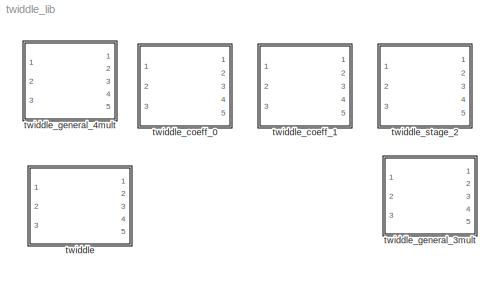
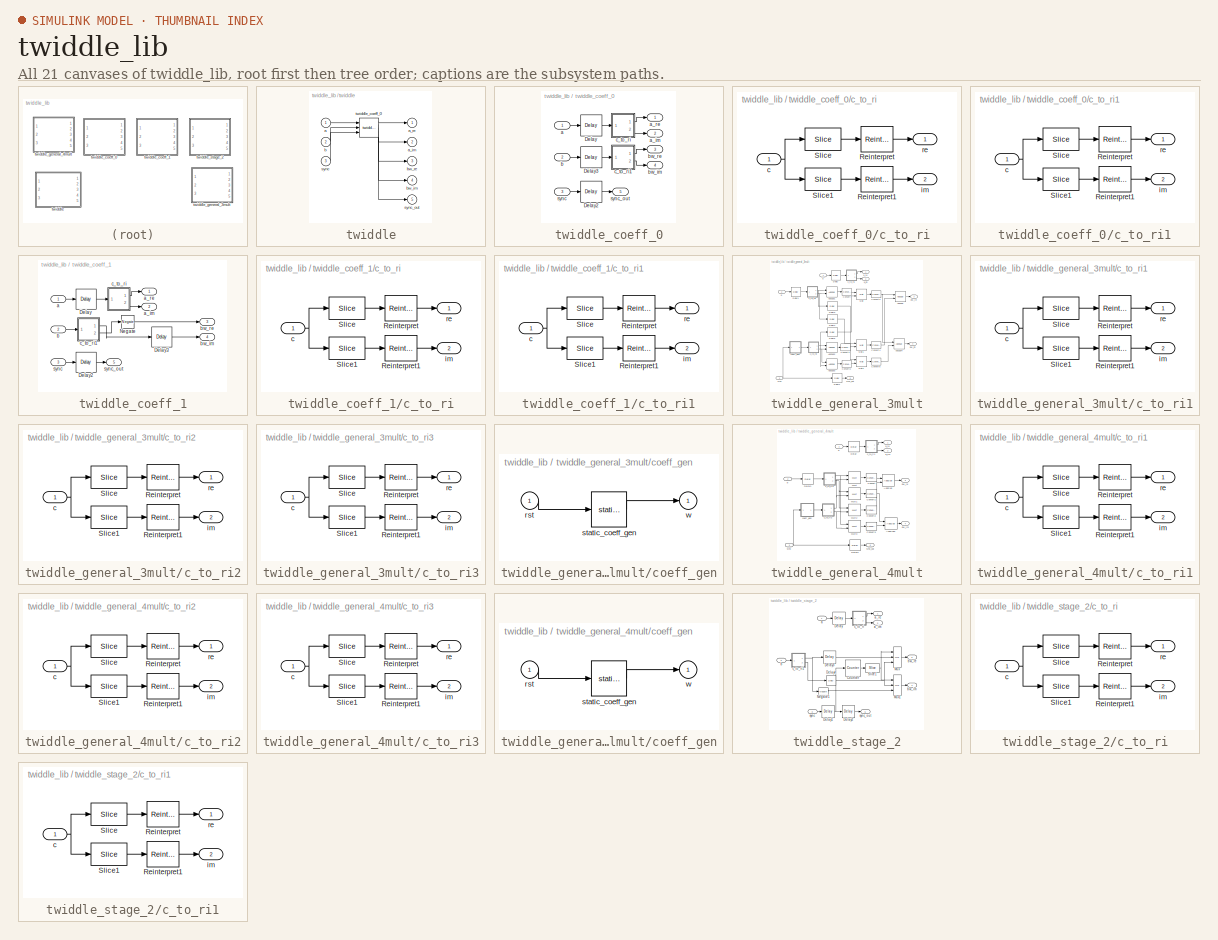
[diagram: thumbnail index - all 21 canvases of the model, root first then tree order]
MODEL twiddle_lib
KIND library
BLOCK [SubSystem] twiddle
  BlockChoice = twiddle_coeff_0
  MemberBlocks = twiddle_coeff_0,twiddle_coeff_1,twiddle_general_3mult,twiddle_general_4mult,twiddle_stage_2
  MinAlgLoopOccurrences = off
  Ports = [3, 5]
  RTWSystemCode = Auto
  TemplateBlock = self
  TreatAsAtomicUnit = off
BLOCK [Inport] twiddle/a
  IconDisplay = Port number
  LatchInput = off
  Port = 1
BLOCK [Outport] twiddle/a_im
  BusOutputAsStruct = off
  IconDisplay = Port number
  Port = 2
BLOCK [Outport] twiddle/a_re
  BusOutputAsStruct = off
  IconDisplay = Port number
BLOCK [Inport] twiddle/b
  IconDisplay = Port number
  LatchInput = off
  Port = 2
BLOCK [Outport] twiddle/bw_im
  BusOutputAsStruct = off
  IconDisplay = Port number
  Port = 4
BLOCK [Outport] twiddle/bw_re
  BusOutputAsStruct = off
  IconDisplay = Port number
  Port = 3
BLOCK [Inport] twiddle/sync
  IconDisplay = Port number
  LatchInput = off
  Port = 3
BLOCK [Outport] twiddle/sync_out
  BusOutputAsStruct = off
  IconDisplay = Port number
  Port = 5
BLOCK [Reference] twiddle/twiddle_coeff_0  REF=twiddle_lib/twiddle_coeff_0  (lib defined in mdl_941c3dec9a0a)
  BitWidth = 18
  Ports = [3, 5]
  ShowPortLabels = on
  SourceBlock = twiddle_lib/twiddle_coeff_0
  add_latency = 3
  bram_latency = 4
  mult_latency = 4
BLOCK [SubSystem] twiddle_coeff_0
  MaskCallbackString = |||
  MaskEnableString = on,on,on,on
  MaskIconFrame = on
  MaskIconOpaque = on
  MaskIconRotate = none
  MaskIconUnits = autoscale
  MaskInitialization = cursys = gcb;\ndisp(cursys);
  MaskPromptString = Bit Width|Add Latency|Mult Latency|BRAM Latency
  MaskSelfModifiable = on
  MaskStyleString = edit,edit,edit,edit
  MaskTabNameString = ,,,
  MaskToolTipString = on,on,on,on
  MaskTunableValueString = on,on,on,on
  MaskValueString = 18|3|4|4
  MaskVarAliasString = ,,,
  MaskVariables = BitWidth=@1;add_latency=@2;mult_latency=@3;bram_latency=@4;
  MaskVisibilityString = on,on,on,on
  MinAlgLoopOccurrences = off
  Ports = [3, 5]
  RTWSystemCode = Auto
  TreatAsAtomicUnit = off
BLOCK [Reference] twiddle_coeff_0/Delay  REF=xbsIndex_r3/Delay
  Ports = [1, 1]
  SourceBlock = xbsIndex_r3/Delay
  SourceType = Xilinx Delay Block
  accept_only_valid = off
  dbl_ovrd = off
  en = off
  explicit_period = off
  init_zero = on
  latency = mult_latency + add_latency + bram_latency
  period = 1
  reg_retiming = off
  show_param = off
  xl_area = [0, 0, 0, 0, 0, 0, 0]
  xl_use_area = off
BLOCK [Reference] twiddle_coeff_0/Delay2  REF=xbsIndex_r3/Delay
  Ports = [1, 1]
  SourceBlock = xbsIndex_r3/Delay
  SourceType = Xilinx Delay Block
  accept_only_valid = off
  dbl_ovrd = off
  en = off
  explicit_period = off
  init_zero = on
  latency = mult_latency + add_latency + bram_latency
  period = 1
  reg_retiming = off
  show_param = off
  xl_area = [0, 0, 0, 0, 0, 0, 0]
  xl_use_area = off
BLOCK [Reference] twiddle_coeff_0/Delay3  REF=xbsIndex_r3/Delay
  Ports = [1, 1]
  SourceBlock = xbsIndex_r3/Delay
  SourceType = Xilinx Delay Block
  accept_only_valid = off
  dbl_ovrd = off
  en = off
  explicit_period = off
  init_zero = on
  latency = mult_latency + add_latency + bram_latency
  period = 1
  reg_retiming = off
  show_param = off
  xl_area = [0, 0, 0, 0, 0, 0, 0]
  xl_use_area = off
BLOCK [Inport] twiddle_coeff_0/a
  IconDisplay = Port number
  LatchInput = off
  Port = 1
BLOCK [Outport] twiddle_coeff_0/a_im
  BusOutputAsStruct = off
  IconDisplay = Port number
  Port = 2
BLOCK [Outport] twiddle_coeff_0/a_re
  BusOutputAsStruct = off
  IconDisplay = Port number
BLOCK [Inport] twiddle_coeff_0/b
  IconDisplay = Port number
  LatchInput = off
  Port = 2
BLOCK [Outport] twiddle_coeff_0/bw_im
  BusOutputAsStruct = off
  IconDisplay = Port number
  Port = 4
BLOCK [Outport] twiddle_coeff_0/bw_re
  BusOutputAsStruct = off
  IconDisplay = Port number
  Port = 3
BLOCK [SubSystem] twiddle_coeff_0/c_to_ri
  MinAlgLoopOccurrences = off
  Ports = [1, 2]
  RTWSystemCode = Auto
  TreatAsAtomicUnit = off
BLOCK [Reference] twiddle_coeff_0/c_to_ri/Reinterpret  REF=xbsIndex_r3/Reinterpret
  Ports = [1, 1]
  SourceBlock = xbsIndex_r3/Reinterpret
  SourceType = Xilinx Type Reinterpreting Block
  arith_type = Signed  (2's comp)
  bin_pt = BitWidth - 1
  force_arith_type = on
  force_bin_pt = on
  force_valid = on
BLOCK [Reference] twiddle_coeff_0/c_to_ri/Reinterpret1  REF=xbsIndex_r3/Reinterpret
  Ports = [1, 1]
  SourceBlock = xbsIndex_r3/Reinterpret
  SourceType = Xilinx Type Reinterpreting Block
  arith_type = Signed  (2's comp)
  bin_pt = BitWidth - 1
  force_arith_type = on
  force_bin_pt = on
  force_valid = on
BLOCK [Reference] twiddle_coeff_0/c_to_ri/Slice  REF=xbsIndex_r3/Slice
  Ports = [1, 1]
  SourceBlock = xbsIndex_r3/Slice
  SourceType = Xilinx Slice Block
  base0 = LSB of Input
  base1 = MSB of Input
  bit0 = 0
  bit1 = 0
  boolean_output = off
  dbl_ovrd = off
  explicit_period = off
  mode = Upper Bit Location + Width
  nbits = BitWidth
  period = 1
BLOCK [Reference] twiddle_coeff_0/c_to_ri/Slice1  REF=xbsIndex_r3/Slice
  Ports = [1, 1]
  SourceBlock = xbsIndex_r3/Slice
  SourceType = Xilinx Slice Block
  base0 = LSB of Input
  base1 = MSB of Input
  bit0 = 0
  bit1 = 0
  boolean_output = off
  dbl_ovrd = off
  explicit_period = off
  mode = Lower Bit Location + Width
  nbits = BitWidth
  period = 1
BLOCK [Inport] twiddle_coeff_0/c_to_ri/c
  IconDisplay = Port number
  LatchInput = off
  Port = 1
BLOCK [Outport] twiddle_coeff_0/c_to_ri/im
  BusOutputAsStruct = off
  IconDisplay = Port number
  Port = 2
BLOCK [Outport] twiddle_coeff_0/c_to_ri/re
  BusOutputAsStruct = off
  IconDisplay = Port number
BLOCK [SubSystem] twiddle_coeff_0/c_to_ri1
  MinAlgLoopOccurrences = off
  Ports = [1, 2]
  RTWSystemCode = Auto
  TreatAsAtomicUnit = off
BLOCK [Reference] twiddle_coeff_0/c_to_ri1/Reinterpret  REF=xbsIndex_r3/Reinterpret
  Ports = [1, 1]
  SourceBlock = xbsIndex_r3/Reinterpret
  SourceType = Xilinx Type Reinterpreting Block
  arith_type = Signed  (2's comp)
  bin_pt = BitWidth - 1
  force_arith_type = on
  force_bin_pt = on
  force_valid = on
BLOCK [Reference] twiddle_coeff_0/c_to_ri1/Reinterpret1  REF=xbsIndex_r3/Reinterpret
  Ports = [1, 1]
  SourceBlock = xbsIndex_r3/Reinterpret
  SourceType = Xilinx Type Reinterpreting Block
  arith_type = Signed  (2's comp)
  bin_pt = BitWidth - 1
  force_arith_type = on
  force_bin_pt = on
  force_valid = on
BLOCK [Reference] twiddle_coeff_0/c_to_ri1/Slice  REF=xbsIndex_r3/Slice
  Ports = [1, 1]
  SourceBlock = xbsIndex_r3/Slice
  SourceType = Xilinx Slice Block
  base0 = LSB of Input
  base1 = MSB of Input
  bit0 = 0
  bit1 = 0
  boolean_output = off
  dbl_ovrd = off
  explicit_period = off
  mode = Upper Bit Location + Width
  nbits = BitWidth
  period = 1
BLOCK [Reference] twiddle_coeff_0/c_to_ri1/Slice1  REF=xbsIndex_r3/Slice
  Ports = [1, 1]
  SourceBlock = xbsIndex_r3/Slice
  SourceType = Xilinx Slice Block
  base0 = LSB of Input
  base1 = MSB of Input
  bit0 = 0
  bit1 = 0
  boolean_output = off
  dbl_ovrd = off
  explicit_period = off
  mode = Lower Bit Location + Width
  nbits = BitWidth
  period = 1
BLOCK [Inport] twiddle_coeff_0/c_to_ri1/c
  IconDisplay = Port number
  LatchInput = off
  Port = 1
BLOCK [Outport] twiddle_coeff_0/c_to_ri1/im
  BusOutputAsStruct = off
  IconDisplay = Port number
  Port = 2
BLOCK [Outport] twiddle_coeff_0/c_to_ri1/re
  BusOutputAsStruct = off
  IconDisplay = Port number
BLOCK [Inport] twiddle_coeff_0/sync
  IconDisplay = Port number
  LatchInput = off
  Port = 3
BLOCK [Outport] twiddle_coeff_0/sync_out
  BusOutputAsStruct = off
  IconDisplay = Port number
  Port = 5
BLOCK [SubSystem] twiddle_coeff_1
  MaskCallbackString = |||
  MaskEnableString = on,on,on,on
  MaskIconFrame = on
  MaskIconOpaque = on
  MaskIconRotate = none
  MaskIconUnits = autoscale
  MaskInitialization = cursys = gcb;\ndisp(cursys);
  MaskPromptString = Bit Width|Add Latency|Mult Latency|BRAM Latency
  MaskSelfModifiable = on
  MaskStyleString = edit,edit,edit,edit
  MaskTabNameString = ,,,
  MaskToolTipString = on,on,on,on
  MaskTunableValueString = on,on,on,on
  MaskValueString = 18|3|4|4
  MaskVarAliasString = ,,,
  MaskVariables = BitWidth=@1;add_latency=@2;mult_latency=@3;bram_latency=@4;
  MaskVisibilityString = on,on,on,on
  MinAlgLoopOccurrences = off
  Ports = [3, 5]
  RTWSystemCode = Auto
  TreatAsAtomicUnit = off
BLOCK [Reference] twiddle_coeff_1/Delay  REF=xbsIndex_r3/Delay
  Ports = [1, 1]
  SourceBlock = xbsIndex_r3/Delay
  SourceType = Xilinx Delay Block
  accept_only_valid = off
  dbl_ovrd = off
  en = off
  explicit_period = off
  init_zero = on
  latency = mult_latency + add_latency + bram_latency
  period = 1
  reg_retiming = off
  show_param = off
  xl_area = [0, 0, 0, 0, 0, 0, 0]
  xl_use_area = off
BLOCK [Reference] twiddle_coeff_1/Delay2  REF=xbsIndex_r3/Delay
  Ports = [1, 1]
  SourceBlock = xbsIndex_r3/Delay
  SourceType = Xilinx Delay Block
  accept_only_valid = off
  dbl_ovrd = off
  en = off
  explicit_period = off
  init_zero = on
  latency = mult_latency + add_latency + bram_latency
  period = 1
  reg_retiming = off
  show_param = off
  xl_area = [0, 0, 0, 0, 0, 0, 0]
  xl_use_area = off
BLOCK [Reference] twiddle_coeff_1/Delay3  REF=xbsIndex_r3/Delay
  Ports = [1, 1]
  SourceBlock = xbsIndex_r3/Delay
  SourceType = Xilinx Delay Block
  accept_only_valid = off
  dbl_ovrd = off
  en = off
  explicit_period = off
  init_zero = on
  latency = mult_latency + add_latency + bram_latency
  period = 1
  reg_retiming = off
  show_param = off
  xl_area = [0, 0, 0, 0, 0, 0, 0]
  xl_use_area = off
BLOCK [Reference] twiddle_coeff_1/Negate  REF=xbsIndex_r3/Negate
  Ports = [1, 1]
  SourceBlock = xbsIndex_r3/Negate
  SourceType = Xilinx Negate Block
  arith_type = Signed  (2's comp)
  bin_pt = BitWidth-1
  dbl_ovrd = off
  en = off
  explicit_period = off
  gen_core = off
  latency = mult_latency + add_latency + bram_latency
  n_bits = BitWidth
  overflow = Wrap
  period = 1
  precision = User Defined
  quantization = Truncate
  show_param = off
  use_core = on
  use_rpm = on
  xl_area = [0, 0, 0, 0, 0, 0, 0]
  xl_use_area = off
BLOCK [Inport] twiddle_coeff_1/a
  IconDisplay = Port number
  LatchInput = off
  Port = 1
BLOCK [Outport] twiddle_coeff_1/a_im
  BusOutputAsStruct = off
  IconDisplay = Port number
  Port = 2
BLOCK [Outport] twiddle_coeff_1/a_re
  BusOutputAsStruct = off
  IconDisplay = Port number
BLOCK [Inport] twiddle_coeff_1/b
  IconDisplay = Port number
  LatchInput = off
  Port = 2
BLOCK [Outport] twiddle_coeff_1/bw_im
  BusOutputAsStruct = off
  IconDisplay = Port number
  Port = 4
BLOCK [Outport] twiddle_coeff_1/bw_re
  BusOutputAsStruct = off
  IconDisplay = Port number
  Port = 3
BLOCK [SubSystem] twiddle_coeff_1/c_to_ri
  MinAlgLoopOccurrences = off
  Ports = [1, 2]
  RTWSystemCode = Auto
  TreatAsAtomicUnit = off
BLOCK [Reference] twiddle_coeff_1/c_to_ri/Reinterpret  REF=xbsIndex_r3/Reinterpret
  Ports = [1, 1]
  SourceBlock = xbsIndex_r3/Reinterpret
  SourceType = Xilinx Type Reinterpreting Block
  arith_type = Signed  (2's comp)
  bin_pt = BitWidth - 1
  force_arith_type = on
  force_bin_pt = on
  force_valid = on
BLOCK [Reference] twiddle_coeff_1/c_to_ri/Reinterpret1  REF=xbsIndex_r3/Reinterpret
  Ports = [1, 1]
  SourceBlock = xbsIndex_r3/Reinterpret
  SourceType = Xilinx Type Reinterpreting Block
  arith_type = Signed  (2's comp)
  bin_pt = BitWidth - 1
  force_arith_type = on
  force_bin_pt = on
  force_valid = on
BLOCK [Reference] twiddle_coeff_1/c_to_ri/Slice  REF=xbsIndex_r3/Slice
  Ports = [1, 1]
  SourceBlock = xbsIndex_r3/Slice
  SourceType = Xilinx Slice Block
  base0 = LSB of Input
  base1 = MSB of Input
  bit0 = 0
  bit1 = 0
  boolean_output = off
  dbl_ovrd = off
  explicit_period = off
  mode = Upper Bit Location + Width
  nbits = BitWidth
  period = 1
BLOCK [Reference] twiddle_coeff_1/c_to_ri/Slice1  REF=xbsIndex_r3/Slice
  Ports = [1, 1]
  SourceBlock = xbsIndex_r3/Slice
  SourceType = Xilinx Slice Block
  base0 = LSB of Input
  base1 = MSB of Input
  bit0 = 0
  bit1 = 0
  boolean_output = off
  dbl_ovrd = off
  explicit_period = off
  mode = Lower Bit Location + Width
  nbits = BitWidth
  period = 1
BLOCK [Inport] twiddle_coeff_1/c_to_ri/c
  IconDisplay = Port number
  LatchInput = off
  Port = 1
BLOCK [Outport] twiddle_coeff_1/c_to_ri/im
  BusOutputAsStruct = off
  IconDisplay = Port number
  Port = 2
BLOCK [Outport] twiddle_coeff_1/c_to_ri/re
  BusOutputAsStruct = off
  IconDisplay = Port number
BLOCK [SubSystem] twiddle_coeff_1/c_to_ri1
  MinAlgLoopOccurrences = off
  Ports = [1, 2]
  RTWSystemCode = Auto
  TreatAsAtomicUnit = off
BLOCK [Reference] twiddle_coeff_1/c_to_ri1/Reinterpret  REF=xbsIndex_r3/Reinterpret
  Ports = [1, 1]
  SourceBlock = xbsIndex_r3/Reinterpret
  SourceType = Xilinx Type Reinterpreting Block
  arith_type = Signed  (2's comp)
  bin_pt = BitWidth - 1
  force_arith_type = on
  force_bin_pt = on
  force_valid = on
BLOCK [Reference] twiddle_coeff_1/c_to_ri1/Reinterpret1  REF=xbsIndex_r3/Reinterpret
  Ports = [1, 1]
  SourceBlock = xbsIndex_r3/Reinterpret
  SourceType = Xilinx Type Reinterpreting Block
  arith_type = Signed  (2's comp)
  bin_pt = BitWidth - 1
  force_arith_type = on
  force_bin_pt = on
  force_valid = on
BLOCK [Reference] twiddle_coeff_1/c_to_ri1/Slice  REF=xbsIndex_r3/Slice
  Ports = [1, 1]
  SourceBlock = xbsIndex_r3/Slice
  SourceType = Xilinx Slice Block
  base0 = LSB of Input
  base1 = MSB of Input
  bit0 = 0
  bit1 = 0
  boolean_output = off
  dbl_ovrd = off
  explicit_period = off
  mode = Upper Bit Location + Width
  nbits = BitWidth
  period = 1
BLOCK [Reference] twiddle_coeff_1/c_to_ri1/Slice1  REF=xbsIndex_r3/Slice
  Ports = [1, 1]
  SourceBlock = xbsIndex_r3/Slice
  SourceType = Xilinx Slice Block
  base0 = LSB of Input
  base1 = MSB of Input
  bit0 = 0
  bit1 = 0
  boolean_output = off
  dbl_ovrd = off
  explicit_period = off
  mode = Lower Bit Location + Width
  nbits = BitWidth
  period = 1
BLOCK [Inport] twiddle_coeff_1/c_to_ri1/c
  IconDisplay = Port number
  LatchInput = off
  Port = 1
BLOCK [Outport] twiddle_coeff_1/c_to_ri1/im
  BusOutputAsStruct = off
  IconDisplay = Port number
  Port = 2
BLOCK [Outport] twiddle_coeff_1/c_to_ri1/re
  BusOutputAsStruct = off
  IconDisplay = Port number
BLOCK [Inport] twiddle_coeff_1/sync
  IconDisplay = Port number
  LatchInput = off
  Port = 3
BLOCK [Outport] twiddle_coeff_1/sync_out
  BusOutputAsStruct = off
  IconDisplay = Port number
  Port = 5
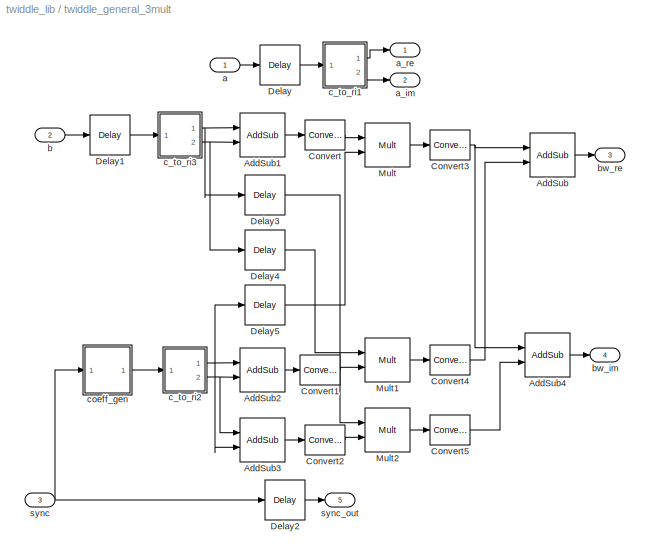
BLOCK [SubSystem] twiddle_general_3mult
  MaskCallbackString = |||||
  MaskEnableString = on,on,on,on,on,on
  MaskIconFrame = on
  MaskIconOpaque = on
  MaskIconRotate = none
  MaskIconUnits = autoscale
  MaskInitialization = cursys = gcb;\ndisp(cursys);
  MaskPromptString = Coefficients:|Coefficient Step Period (2^?)|Bit Width|Add Latency|Mult Latency|BRAM Latency
  MaskSelfModifiable = on
  MaskStyleString = edit,edit,edit,edit,edit,edit
  MaskTabNameString = ,,,,,
  MaskToolTipString = on,on,on,on,on,on
  MaskTunableValueString = on,on,on,on,on,on
  MaskValueString = [0]|0|18|3|4|4
  MaskVarAliasString = ,,,,,
  MaskVariables = Coeffs=@1;StepPeriod=@2;BitWidth=@3;add_latency=@4;mult_latency=@5;bram_latency=@6;
  MaskVisibilityString = on,on,on,on,on,on
  MinAlgLoopOccurrences = off
  Ports = [3, 5]
  RTWSystemCode = Auto
  TreatAsAtomicUnit = off
BLOCK [Reference] twiddle_general_3mult/AddSub  REF=xbsIndex_r3/AddSub
  Ports = [2, 1]
  SourceBlock = xbsIndex_r3/AddSub
  SourceType = Xilinx Adder/Subtractor
  arith_type = Signed  (2's comp)
  bin_pt = BitWidth - 1
  dbl_ovrd = off
  en = off
  explicit_period = off
  gen_core = on
  latency = add_latency
  mode = Subtraction
  n_bits = BitWidth
  overflow = Wrap
  period = 1
  pipeline = on
  precision = Full
  quantization = Round  (unbiased: +/- Inf)
  show_param = on
  use_carryin = off
  use_carryout = off
  use_core = on
  use_rpm = on
  xl_area = [0, 0, 0, 0, 0, 0, 0]
  xl_use_area = off
BLOCK [Reference] twiddle_general_3mult/AddSub1  REF=xbsIndex_r3/AddSub
  Ports = [2, 1]
  SourceBlock = xbsIndex_r3/AddSub
  SourceType = Xilinx Adder/Subtractor
  arith_type = Signed  (2's comp)
  bin_pt = BitWidth - 1
  dbl_ovrd = off
  en = off
  explicit_period = off
  gen_core = on
  latency = add_latency
  mode = Addition
  n_bits = BitWidth
  overflow = Wrap
  period = 1
  pipeline = on
  precision = Full
  quantization = Round  (unbiased: +/- Inf)
  show_param = on
  use_carryin = off
  use_carryout = off
  use_core = on
  use_rpm = on
  xl_area = [0, 0, 0, 0, 0, 0, 0]
  xl_use_area = off
BLOCK [Reference] twiddle_general_3mult/AddSub2  REF=xbsIndex_r3/AddSub
  Ports = [2, 1]
  SourceBlock = xbsIndex_r3/AddSub
  SourceType = Xilinx Adder/Subtractor
  arith_type = Signed  (2's comp)
  bin_pt = BitWidth - 1
  dbl_ovrd = off
  en = off
  explicit_period = off
  gen_core = on
  latency = add_latency
  mode = Addition
  n_bits = BitWidth
  overflow = Wrap
  period = 1
  pipeline = on
  precision = Full
  quantization = Round  (unbiased: +/- Inf)
  show_param = on
  use_carryin = off
  use_carryout = off
  use_core = on
  use_rpm = on
  xl_area = [0, 0, 0, 0, 0, 0, 0]
  xl_use_area = off
BLOCK [Reference] twiddle_general_3mult/AddSub3  REF=xbsIndex_r3/AddSub
  Ports = [2, 1]
  SourceBlock = xbsIndex_r3/AddSub
  SourceType = Xilinx Adder/Subtractor
  arith_type = Signed  (2's comp)
  bin_pt = BitWidth - 1
  dbl_ovrd = off
  en = off
  explicit_period = off
  gen_core = on
  latency = add_latency
  mode = Subtraction
  n_bits = BitWidth
  overflow = Wrap
  period = 1
  pipeline = on
  precision = Full
  quantization = Round  (unbiased: +/- Inf)
  show_param = on
  use_carryin = off
  use_carryout = off
  use_core = on
  use_rpm = on
  xl_area = [0, 0, 0, 0, 0, 0, 0]
  xl_use_area = off
BLOCK [Reference] twiddle_general_3mult/AddSub4  REF=xbsIndex_r3/AddSub
  Ports = [2, 1]
  SourceBlock = xbsIndex_r3/AddSub
  SourceType = Xilinx Adder/Subtractor
  arith_type = Signed  (2's comp)
  bin_pt = BitWidth - 1
  dbl_ovrd = off
  en = off
  explicit_period = off
  gen_core = on
  latency = add_latency
  mode = Addition
  n_bits = BitWidth
  overflow = Wrap
  period = 1
  pipeline = on
  precision = Full
  quantization = Round  (unbiased: +/- Inf)
  show_param = on
  use_carryin = off
  use_carryout = off
  use_core = on
  use_rpm = on
  xl_area = [0, 0, 0, 0, 0, 0, 0]
  xl_use_area = off
BLOCK [Reference] twiddle_general_3mult/Convert  REF=xbsIndex_r3/Convert
  Ports = [1, 1]
  SourceBlock = xbsIndex_r3/Convert
  SourceType = Xilinx Converter Block
  arith_type = Signed  (2's comp)
  bin_pt = BitWidth-2
  dbl_ovrd = off
  explicit_period = off
  inserted_by_tool = off
  latency = 0
  n_bits = BitWidth
  overflow = Wrap
  period = 1
  pipeline = off
  quantization = Truncate
  show_param = off
  xl_area = [0, 0, 0, 0, 0, 0, 0]
  xl_use_area = off
BLOCK [Reference] twiddle_general_3mult/Convert1  REF=xbsIndex_r3/Convert
  Ports = [1, 1]
  SourceBlock = xbsIndex_r3/Convert
  SourceType = Xilinx Converter Block
  arith_type = Signed  (2's comp)
  bin_pt = BitWidth-2
  dbl_ovrd = off
  explicit_period = off
  inserted_by_tool = off
  latency = 0
  n_bits = BitWidth
  overflow = Wrap
  period = 1
  pipeline = off
  quantization = Truncate
  show_param = off
  xl_area = [0, 0, 0, 0, 0, 0, 0]
  xl_use_area = off
BLOCK [Reference] twiddle_general_3mult/Convert2  REF=xbsIndex_r3/Convert
  Ports = [1, 1]
  SourceBlock = xbsIndex_r3/Convert
  SourceType = Xilinx Converter Block
  arith_type = Signed  (2's comp)
  bin_pt = BitWidth-2
  dbl_ovrd = off
  explicit_period = off
  inserted_by_tool = off
  latency = 0
  n_bits = BitWidth
  overflow = Wrap
  period = 1
  pipeline = off
  quantization = Truncate
  show_param = off
  xl_area = [0, 0, 0, 0, 0, 0, 0]
  xl_use_area = off
BLOCK [Reference] twiddle_general_3mult/Convert3  REF=xbsIndex_r3/Convert
  Ports = [1, 1]
  SourceBlock = xbsIndex_r3/Convert
  SourceType = Xilinx Converter Block
  arith_type = Signed  (2's comp)
  bin_pt = BitWidth
  dbl_ovrd = off
  explicit_period = off
  inserted_by_tool = off
  latency = 0
  n_bits = BitWidth + 3
  overflow = Wrap
  period = 1
  pipeline = off
  quantization = Truncate
  show_param = off
  xl_area = [0, 0, 0, 0, 0, 0, 0]
  xl_use_area = off
BLOCK [Reference] twiddle_general_3mult/Convert4  REF=xbsIndex_r3/Convert
  Ports = [1, 1]
  SourceBlock = xbsIndex_r3/Convert
  SourceType = Xilinx Converter Block
  arith_type = Signed  (2's comp)
  bin_pt = BitWidth
  dbl_ovrd = off
  explicit_period = off
  inserted_by_tool = off
  latency = 0
  n_bits = BitWidth + 3
  overflow = Wrap
  period = 1
  pipeline = off
  quantization = Truncate
  show_param = off
  xl_area = [0, 0, 0, 0, 0, 0, 0]
  xl_use_area = off
BLOCK [Reference] twiddle_general_3mult/Convert5  REF=xbsIndex_r3/Convert
  Ports = [1, 1]
  SourceBlock = xbsIndex_r3/Convert
  SourceType = Xilinx Converter Block
  arith_type = Signed  (2's comp)
  bin_pt = BitWidth
  dbl_ovrd = off
  explicit_period = off
  inserted_by_tool = off
  latency = 0
  n_bits = BitWidth + 3
  overflow = Wrap
  period = 1
  pipeline = off
  quantization = Truncate
  show_param = off
  xl_area = [0, 0, 0, 0, 0, 0, 0]
  xl_use_area = off
BLOCK [Reference] twiddle_general_3mult/Delay  REF=xbsIndex_r3/Delay
  Ports = [1, 1]
  SourceBlock = xbsIndex_r3/Delay
  SourceType = Xilinx Delay Block
  accept_only_valid = off
  dbl_ovrd = off
  en = off
  explicit_period = off
  init_zero = on
  latency = mult_latency + 2*add_latency + bram_latency
  period = 1
  reg_retiming = off
  show_param = off
  xl_area = [0, 0, 0, 0, 0, 0, 0]
  xl_use_area = off
BLOCK [Reference] twiddle_general_3mult/Delay1  REF=xbsIndex_r3/Delay
  Ports = [1, 1]
  SourceBlock = xbsIndex_r3/Delay
  SourceType = Xilinx Delay Block
  accept_only_valid = off
  dbl_ovrd = off
  en = off
  explicit_period = off
  init_zero = on
  latency = bram_latency
  period = 1
  reg_retiming = off
  show_param = off
  xl_area = [0, 0, 0, 0, 0, 0, 0]
  xl_use_area = off
BLOCK [Reference] twiddle_general_3mult/Delay2  REF=xbsIndex_r3/Delay
  Ports = [1, 1]
  SourceBlock = xbsIndex_r3/Delay
  SourceType = Xilinx Delay Block
  accept_only_valid = off
  dbl_ovrd = off
  en = off
  explicit_period = off
  init_zero = on
  latency = mult_latency + 2*add_latency + bram_latency
  period = 1
  reg_retiming = off
  show_param = off
  xl_area = [0, 0, 0, 0, 0, 0, 0]
  xl_use_area = off
BLOCK [Reference] twiddle_general_3mult/Delay3  REF=xbsIndex_r3/Delay
  Ports = [1, 1]
  SourceBlock = xbsIndex_r3/Delay
  SourceType = Xilinx Delay Block
  accept_only_valid = off
  dbl_ovrd = off
  en = off
  explicit_period = off
  init_zero = on
  latency = add_latency
  period = 1
  reg_retiming = off
  show_param = off
  xl_area = [0, 0, 0, 0, 0, 0, 0]
  xl_use_area = off
BLOCK [Reference] twiddle_general_3mult/Delay4  REF=xbsIndex_r3/Delay
  Ports = [1, 1]
  SourceBlock = xbsIndex_r3/Delay
  SourceType = Xilinx Delay Block
  accept_only_valid = off
  dbl_ovrd = off
  en = off
  explicit_period = off
  init_zero = on
  latency = add_latency
  period = 1
  reg_retiming = off
  show_param = off
  xl_area = [0, 0, 0, 0, 0, 0, 0]
  xl_use_area = off
BLOCK [Reference] twiddle_general_3mult/Delay5  REF=xbsIndex_r3/Delay
  Ports = [1, 1]
  SourceBlock = xbsIndex_r3/Delay
  SourceType = Xilinx Delay Block
  accept_only_valid = off
  dbl_ovrd = off
  en = off
  explicit_period = off
  init_zero = on
  latency = add_latency
  period = 1
  reg_retiming = off
  show_param = off
  xl_area = [0, 0, 0, 0, 0, 0, 0]
  xl_use_area = off
BLOCK [Reference] twiddle_general_3mult/Mult  REF=xbsIndex_r3/Mult
  Ports = [2, 1]
  SourceBlock = xbsIndex_r3/Mult
  SourceType = Xilinx Multiplier
  arith_type = Signed  (2's comp)
  bin_pt = BitWidth-1
  dbl_ovrd = off
  en = off
  explicit_period = off
  gen_core = on
  latency = mult_latency
  mult_type = Parallel
  n_bits = BitWidth
  overflow = Wrap
  oversample = 2
  period = 1
  pipeline = on
  placement_style = Rectangular Shape
  precision = Full
  quantization = Round  (unbiased: +/- Inf)
  show_param = on
  use_embedded = on
  use_rpm = on
  xl_area = [0, 0, 0, 0, 0, 0, 0]
  xl_use_area = off
BLOCK [Reference] twiddle_general_3mult/Mult1  REF=xbsIndex_r3/Mult
  Ports = [2, 1]
  SourceBlock = xbsIndex_r3/Mult
  SourceType = Xilinx Multiplier
  arith_type = Signed  (2's comp)
  bin_pt = BitWidth-1
  dbl_ovrd = off
  en = off
  explicit_period = off
  gen_core = on
  latency = mult_latency
  mult_type = Parallel
  n_bits = BitWidth
  overflow = Wrap
  oversample = 2
  period = 1
  pipeline = on
  placement_style = Rectangular Shape
  precision = Full
  quantization = Round  (unbiased: +/- Inf)
  show_param = on
  use_embedded = on
  use_rpm = on
  xl_area = [0, 0, 0, 0, 0, 0, 0]
  xl_use_area = off
BLOCK [Reference] twiddle_general_3mult/Mult2  REF=xbsIndex_r3/Mult
  Ports = [2, 1]
  SourceBlock = xbsIndex_r3/Mult
  SourceType = Xilinx Multiplier
  arith_type = Signed  (2's comp)
  bin_pt = BitWidth-1
  dbl_ovrd = off
  en = off
  explicit_period = off
  gen_core = on
  latency = mult_latency
  mult_type = Parallel
  n_bits = BitWidth
  overflow = Wrap
  oversample = 2
  period = 1
  pipeline = on
  placement_style = Rectangular Shape
  precision = Full
  quantization = Round  (unbiased: +/- Inf)
  show_param = on
  use_embedded = on
  use_rpm = on
  xl_area = [0, 0, 0, 0, 0, 0, 0]
  xl_use_area = off
BLOCK [Inport] twiddle_general_3mult/a
  IconDisplay = Port number
  LatchInput = off
  Port = 1
BLOCK [Outport] twiddle_general_3mult/a_im
  BusOutputAsStruct = off
  IconDisplay = Port number
  Port = 2
BLOCK [Outport] twiddle_general_3mult/a_re
  BusOutputAsStruct = off
  IconDisplay = Port number
BLOCK [Inport] twiddle_general_3mult/b
  IconDisplay = Port number
  LatchInput = off
  Port = 2
BLOCK [Outport] twiddle_general_3mult/bw_im
  BusOutputAsStruct = off
  IconDisplay = Port number
  Port = 4
BLOCK [Outport] twiddle_general_3mult/bw_re
  BusOutputAsStruct = off
  IconDisplay = Port number
  Port = 3
BLOCK [SubSystem] twiddle_general_3mult/c_to_ri1
  MinAlgLoopOccurrences = off
  Ports = [1, 2]
  RTWSystemCode = Auto
  TreatAsAtomicUnit = off
BLOCK [Reference] twiddle_general_3mult/c_to_ri1/Reinterpret  REF=xbsIndex_r3/Reinterpret
  Ports = [1, 1]
  SourceBlock = xbsIndex_r3/Reinterpret
  SourceType = Xilinx Type Reinterpreting Block
  arith_type = Signed  (2's comp)
  bin_pt = BitWidth - 1
  force_arith_type = on
  force_bin_pt = on
  force_valid = on
BLOCK [Reference] twiddle_general_3mult/c_to_ri1/Reinterpret1  REF=xbsIndex_r3/Reinterpret
  Ports = [1, 1]
  SourceBlock = xbsIndex_r3/Reinterpret
  SourceType = Xilinx Type Reinterpreting Block
  arith_type = Signed  (2's comp)
  bin_pt = BitWidth - 1
  force_arith_type = on
  force_bin_pt = on
  force_valid = on
BLOCK [Reference] twiddle_general_3mult/c_to_ri1/Slice  REF=xbsIndex_r3/Slice
  Ports = [1, 1]
  SourceBlock = xbsIndex_r3/Slice
  SourceType = Xilinx Slice Block
  base0 = LSB of Input
  base1 = MSB of Input
  bit0 = 0
  bit1 = 0
  boolean_output = off
  dbl_ovrd = off
  explicit_period = off
  mode = Upper Bit Location + Width
  nbits = BitWidth
  period = 1
BLOCK [Reference] twiddle_general_3mult/c_to_ri1/Slice1  REF=xbsIndex_r3/Slice
  Ports = [1, 1]
  SourceBlock = xbsIndex_r3/Slice
  SourceType = Xilinx Slice Block
  base0 = LSB of Input
  base1 = MSB of Input
  bit0 = 0
  bit1 = 0
  boolean_output = off
  dbl_ovrd = off
  explicit_period = off
  mode = Lower Bit Location + Width
  nbits = BitWidth
  period = 1
BLOCK [Inport] twiddle_general_3mult/c_to_ri1/c
  IconDisplay = Port number
  LatchInput = off
  Port = 1
BLOCK [Outport] twiddle_general_3mult/c_to_ri1/im
  BusOutputAsStruct = off
  IconDisplay = Port number
  Port = 2
BLOCK [Outport] twiddle_general_3mult/c_to_ri1/re
  BusOutputAsStruct = off
  IconDisplay = Port number
BLOCK [SubSystem] twiddle_general_3mult/c_to_ri2
  MinAlgLoopOccurrences = off
  Ports = [1, 2]
  RTWSystemCode = Auto
  TreatAsAtomicUnit = off
BLOCK [Reference] twiddle_general_3mult/c_to_ri2/Reinterpret  REF=xbsIndex_r3/Reinterpret
  Ports = [1, 1]
  SourceBlock = xbsIndex_r3/Reinterpret
  SourceType = Xilinx Type Reinterpreting Block
  arith_type = Signed  (2's comp)
  bin_pt = BitWidth - 1
  force_arith_type = on
  force_bin_pt = on
  force_valid = on
BLOCK [Reference] twiddle_general_3mult/c_to_ri2/Reinterpret1  REF=xbsIndex_r3/Reinterpret
  Ports = [1, 1]
  SourceBlock = xbsIndex_r3/Reinterpret
  SourceType = Xilinx Type Reinterpreting Block
  arith_type = Signed  (2's comp)
  bin_pt = BitWidth - 1
  force_arith_type = on
  force_bin_pt = on
  force_valid = on
BLOCK [Reference] twiddle_general_3mult/c_to_ri2/Slice  REF=xbsIndex_r3/Slice
  Ports = [1, 1]
  SourceBlock = xbsIndex_r3/Slice
  SourceType = Xilinx Slice Block
  base0 = LSB of Input
  base1 = MSB of Input
  bit0 = 0
  bit1 = 0
  boolean_output = off
  dbl_ovrd = off
  explicit_period = off
  mode = Upper Bit Location + Width
  nbits = BitWidth
  period = 1
BLOCK [Reference] twiddle_general_3mult/c_to_ri2/Slice1  REF=xbsIndex_r3/Slice
  Ports = [1, 1]
  SourceBlock = xbsIndex_r3/Slice
  SourceType = Xilinx Slice Block
  base0 = LSB of Input
  base1 = MSB of Input
  bit0 = 0
  bit1 = 0
  boolean_output = off
  dbl_ovrd = off
  explicit_period = off
  mode = Lower Bit Location + Width
  nbits = BitWidth
  period = 1
BLOCK [Inport] twiddle_general_3mult/c_to_ri2/c
  IconDisplay = Port number
  LatchInput = off
  Port = 1
BLOCK [Outport] twiddle_general_3mult/c_to_ri2/im
  BusOutputAsStruct = off
  IconDisplay = Port number
  Port = 2
BLOCK [Outport] twiddle_general_3mult/c_to_ri2/re
  BusOutputAsStruct = off
  IconDisplay = Port number
BLOCK [SubSystem] twiddle_general_3mult/c_to_ri3
  MinAlgLoopOccurrences = off
  Ports = [1, 2]
  RTWSystemCode = Auto
  TreatAsAtomicUnit = off
BLOCK [Reference] twiddle_general_3mult/c_to_ri3/Reinterpret  REF=xbsIndex_r3/Reinterpret
  Ports = [1, 1]
  SourceBlock = xbsIndex_r3/Reinterpret
  SourceType = Xilinx Type Reinterpreting Block
  arith_type = Signed  (2's comp)
  bin_pt = BitWidth - 1
  force_arith_type = on
  force_bin_pt = on
  force_valid = on
BLOCK [Reference] twiddle_general_3mult/c_to_ri3/Reinterpret1  REF=xbsIndex_r3/Reinterpret
  Ports = [1, 1]
  SourceBlock = xbsIndex_r3/Reinterpret
  SourceType = Xilinx Type Reinterpreting Block
  arith_type = Signed  (2's comp)
  bin_pt = BitWidth - 1
  force_arith_type = on
  force_bin_pt = on
  force_valid = on
BLOCK [Reference] twiddle_general_3mult/c_to_ri3/Slice  REF=xbsIndex_r3/Slice
  Ports = [1, 1]
  SourceBlock = xbsIndex_r3/Slice
  SourceType = Xilinx Slice Block
  base0 = LSB of Input
  base1 = MSB of Input
  bit0 = 0
  bit1 = 0
  boolean_output = off
  dbl_ovrd = off
  explicit_period = off
  mode = Upper Bit Location + Width
  nbits = BitWidth
  period = 1
BLOCK [Reference] twiddle_general_3mult/c_to_ri3/Slice1  REF=xbsIndex_r3/Slice
  Ports = [1, 1]
  SourceBlock = xbsIndex_r3/Slice
  SourceType = Xilinx Slice Block
  base0 = LSB of Input
  base1 = MSB of Input
  bit0 = 0
  bit1 = 0
  boolean_output = off
  dbl_ovrd = off
  explicit_period = off
  mode = Lower Bit Location + Width
  nbits = BitWidth
  period = 1
BLOCK [Inport] twiddle_general_3mult/c_to_ri3/c
  IconDisplay = Port number
  LatchInput = off
  Port = 1
BLOCK [Outport] twiddle_general_3mult/c_to_ri3/im
  BusOutputAsStruct = off
  IconDisplay = Port number
  Port = 2
BLOCK [Outport] twiddle_general_3mult/c_to_ri3/re
  BusOutputAsStruct = off
  IconDisplay = Port number
BLOCK [SubSystem] twiddle_general_3mult/coeff_gen
  AttributesFormatString = %<BlockChoice>
  BlockChoice = static_coeff_gen
  MemberBlocks = br_coeff_gen,static_coeff_gen
  MinAlgLoopOccurrences = off
  Ports = [1, 1]
  RTWSystemCode = Auto
  TemplateBlock = coeff_gen_lib/coeff_gen
  TreatAsAtomicUnit = off
BLOCK [Inport] twiddle_general_3mult/coeff_gen/rst
  IconDisplay = Port number
  LatchInput = off
  Port = 1
BLOCK [Reference] twiddle_general_3mult/coeff_gen/static_coeff_gen  REF=coeff_gen_lib/static_coeff_gen  (lib defined in mdl_8ad5df67866b)
  Coeffs = Coeffs
  Ports = [1, 1]
  ShowPortLabels = on
  SourceBlock = coeff_gen_lib/static_coeff_gen
  latency = bram_latency
  n_bits = BitWidth
BLOCK [Outport] twiddle_general_3mult/coeff_gen/w
  BusOutputAsStruct = off
  IconDisplay = Port number
BLOCK [Inport] twiddle_general_3mult/sync
  IconDisplay = Port number
  LatchInput = off
  Port = 3
BLOCK [Outport] twiddle_general_3mult/sync_out
  BusOutputAsStruct = off
  IconDisplay = Port number
  Port = 5
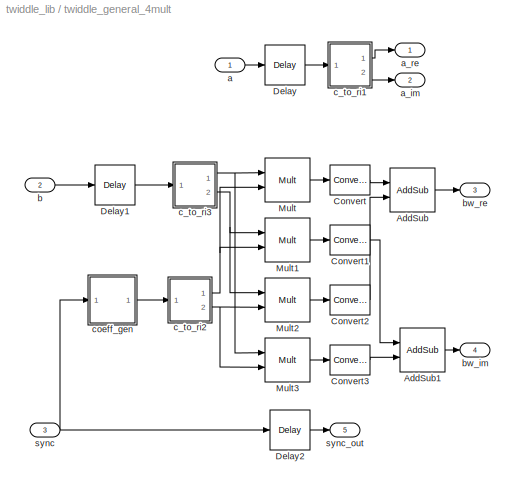
BLOCK [SubSystem] twiddle_general_4mult
  MaskCallbackString = |||||
  MaskEnableString = on,on,on,on,on,on
  MaskIconFrame = on
  MaskIconOpaque = on
  MaskIconRotate = none
  MaskIconUnits = autoscale
  MaskInitialization = cursys = gcb;\ndisp(cursys);
  MaskPromptString = Coefficients:|Coefficient Step Period (2^?)|Bit Width|Add Latency|Mult Latency|BRAM Latency
  MaskSelfModifiable = on
  MaskStyleString = edit,edit,edit,edit,edit,edit
  MaskTabNameString = ,,,,,
  MaskToolTipString = on,on,on,on,on,on
  MaskTunableValueString = on,on,on,on,on,on
  MaskValueString = [0]|0|18|3|4|4
  MaskVarAliasString = ,,,,,
  MaskVariables = Coeffs=@1;StepPeriod=@2;BitWidth=@3;add_latency=@4;mult_latency=@5;bram_latency=@6;
  MaskVisibilityString = on,on,on,on,on,on
  MinAlgLoopOccurrences = off
  Ports = [3, 5]
  RTWSystemCode = Auto
  TreatAsAtomicUnit = off
BLOCK [Reference] twiddle_general_4mult/AddSub  REF=xbsIndex_r3/AddSub
  Ports = [2, 1]
  SourceBlock = xbsIndex_r3/AddSub
  SourceType = Xilinx Adder/Subtractor
  arith_type = Signed  (2's comp)
  bin_pt = BitWidth - 1
  dbl_ovrd = off
  en = off
  explicit_period = off
  gen_core = on
  latency = add_latency
  mode = Subtraction
  n_bits = BitWidth
  overflow = Wrap
  period = 1
  pipeline = on
  precision = Full
  quantization = Round  (unbiased: +/- Inf)
  show_param = on
  use_carryin = off
  use_carryout = off
  use_core = on
  use_rpm = on
  xl_area = [0, 0, 0, 0, 0, 0, 0]
  xl_use_area = off
BLOCK [Reference] twiddle_general_4mult/AddSub1  REF=xbsIndex_r3/AddSub
  Ports = [2, 1]
  SourceBlock = xbsIndex_r3/AddSub
  SourceType = Xilinx Adder/Subtractor
  arith_type = Signed  (2's comp)
  bin_pt = BitWidth-1
  dbl_ovrd = off
  en = off
  explicit_period = off
  gen_core = on
  latency = add_latency
  mode = Addition
  n_bits = BitWidth
  overflow = Wrap
  period = 1
  pipeline = on
  precision = Full
  quantization = Round  (unbiased: +/- Inf)
  show_param = on
  use_carryin = off
  use_carryout = off
  use_core = on
  use_rpm = on
  xl_area = [0, 0, 0, 0, 0, 0, 0]
  xl_use_area = off
BLOCK [Reference] twiddle_general_4mult/Convert  REF=xbsIndex_r3/Convert
  Ports = [1, 1]
  SourceBlock = xbsIndex_r3/Convert
  SourceType = Xilinx Converter Block
  arith_type = Signed  (2's comp)
  bin_pt = BitWidth
  dbl_ovrd = off
  explicit_period = off
  inserted_by_tool = off
  latency = 0
  n_bits = BitWidth + 2
  overflow = Wrap
  period = 1
  pipeline = off
  quantization = Round  (unbiased: Even Values)
  show_param = off
  xl_area = [0, 0, 0, 0, 0, 0, 0]
  xl_use_area = off
BLOCK [Reference] twiddle_general_4mult/Convert1  REF=xbsIndex_r3/Convert
  Ports = [1, 1]
  SourceBlock = xbsIndex_r3/Convert
  SourceType = Xilinx Converter Block
  arith_type = Signed  (2's comp)
  bin_pt = BitWidth
  dbl_ovrd = off
  explicit_period = off
  inserted_by_tool = off
  latency = 0
  n_bits = BitWidth + 2
  overflow = Wrap
  period = 1
  pipeline = off
  quantization = Round  (unbiased: Even Values)
  show_param = off
  xl_area = [0, 0, 0, 0, 0, 0, 0]
  xl_use_area = off
BLOCK [Reference] twiddle_general_4mult/Convert2  REF=xbsIndex_r3/Convert
  Ports = [1, 1]
  SourceBlock = xbsIndex_r3/Convert
  SourceType = Xilinx Converter Block
  arith_type = Signed  (2's comp)
  bin_pt = BitWidth
  dbl_ovrd = off
  explicit_period = off
  inserted_by_tool = off
  latency = 0
  n_bits = BitWidth + 2
  overflow = Wrap
  period = 1
  pipeline = off
  quantization = Round  (unbiased: Even Values)
  show_param = off
  xl_area = [0, 0, 0, 0, 0, 0, 0]
  xl_use_area = off
BLOCK [Reference] twiddle_general_4mult/Convert3  REF=xbsIndex_r3/Convert
  Ports = [1, 1]
  SourceBlock = xbsIndex_r3/Convert
  SourceType = Xilinx Converter Block
  arith_type = Signed  (2's comp)
  bin_pt = BitWidth
  dbl_ovrd = off
  explicit_period = off
  inserted_by_tool = off
  latency = 0
  n_bits = BitWidth + 2
  overflow = Wrap
  period = 1
  pipeline = off
  quantization = Round  (unbiased: Even Values)
  show_param = off
  xl_area = [0, 0, 0, 0, 0, 0, 0]
  xl_use_area = off
BLOCK [Reference] twiddle_general_4mult/Delay  REF=xbsIndex_r3/Delay
  Ports = [1, 1]
  SourceBlock = xbsIndex_r3/Delay
  SourceType = Xilinx Delay Block
  accept_only_valid = off
  dbl_ovrd = off
  en = off
  explicit_period = off
  init_zero = on
  latency = mult_latency + add_latency + bram_latency
  period = 1
  reg_retiming = off
  show_param = off
  xl_area = [0, 0, 0, 0, 0, 0, 0]
  xl_use_area = off
BLOCK [Reference] twiddle_general_4mult/Delay1  REF=xbsIndex_r3/Delay
  Ports = [1, 1]
  SourceBlock = xbsIndex_r3/Delay
  SourceType = Xilinx Delay Block
  accept_only_valid = off
  dbl_ovrd = off
  en = off
  explicit_period = off
  init_zero = on
  latency = bram_latency
  period = 1
  reg_retiming = off
  show_param = off
  xl_area = [0, 0, 0, 0, 0, 0, 0]
  xl_use_area = off
BLOCK [Reference] twiddle_general_4mult/Delay2  REF=xbsIndex_r3/Delay
  Ports = [1, 1]
  SourceBlock = xbsIndex_r3/Delay
  SourceType = Xilinx Delay Block
  accept_only_valid = off
  dbl_ovrd = off
  en = off
  explicit_period = off
  init_zero = on
  latency = mult_latency + add_latency + bram_latency
  period = 1
  reg_retiming = off
  show_param = off
  xl_area = [0, 0, 0, 0, 0, 0, 0]
  xl_use_area = off
BLOCK [Reference] twiddle_general_4mult/Mult  REF=xbsIndex_r3/Mult
  Ports = [2, 1]
  SourceBlock = xbsIndex_r3/Mult
  SourceType = Xilinx Multiplier
  arith_type = Signed  (2's comp)
  bin_pt = BitWidth-1
  dbl_ovrd = off
  en = off
  explicit_period = off
  gen_core = on
  latency = mult_latency
  mult_type = Parallel
  n_bits = BitWidth
  overflow = Wrap
  oversample = 2
  period = 1
  pipeline = on
  placement_style = Rectangular Shape
  precision = Full
  quantization = Round  (unbiased: +/- Inf)
  show_param = on
  use_embedded = on
  use_rpm = on
  xl_area = [0, 0, 0, 0, 0, 0, 0]
  xl_use_area = off
BLOCK [Reference] twiddle_general_4mult/Mult1  REF=xbsIndex_r3/Mult
  Ports = [2, 1]
  SourceBlock = xbsIndex_r3/Mult
  SourceType = Xilinx Multiplier
  arith_type = Signed  (2's comp)
  bin_pt = BitWidth-1
  dbl_ovrd = off
  en = off
  explicit_period = off
  gen_core = on
  latency = mult_latency
  mult_type = Parallel
  n_bits = BitWidth
  overflow = Wrap
  oversample = 2
  period = 1
  pipeline = on
  placement_style = Rectangular Shape
  precision = Full
  quantization = Round  (unbiased: +/- Inf)
  show_param = on
  use_embedded = on
  use_rpm = on
  xl_area = [0, 0, 0, 0, 0, 0, 0]
  xl_use_area = off
BLOCK [Reference] twiddle_general_4mult/Mult2  REF=xbsIndex_r3/Mult
  Ports = [2, 1]
  SourceBlock = xbsIndex_r3/Mult
  SourceType = Xilinx Multiplier
  arith_type = Signed  (2's comp)
  bin_pt = BitWidth-1
  dbl_ovrd = off
  en = off
  explicit_period = off
  gen_core = on
  latency = mult_latency
  mult_type = Parallel
  n_bits = BitWidth
  overflow = Wrap
  oversample = 2
  period = 1
  pipeline = on
  placement_style = Rectangular Shape
  precision = Full
  quantization = Round  (unbiased: +/- Inf)
  show_param = on
  use_embedded = on
  use_rpm = on
  xl_area = [0, 0, 0, 0, 0, 0, 0]
  xl_use_area = off
BLOCK [Reference] twiddle_general_4mult/Mult3  REF=xbsIndex_r3/Mult
  Ports = [2, 1]
  SourceBlock = xbsIndex_r3/Mult
  SourceType = Xilinx Multiplier
  arith_type = Signed  (2's comp)
  bin_pt = BitWidth-1
  dbl_ovrd = off
  en = off
  explicit_period = off
  gen_core = on
  latency = mult_latency
  mult_type = Parallel
  n_bits = BitWidth
  overflow = Wrap
  oversample = 2
  period = 1
  pipeline = on
  placement_style = Rectangular Shape
  precision = Full
  quantization = Round  (unbiased: +/- Inf)
  show_param = on
  use_embedded = on
  use_rpm = on
  xl_area = [0, 0, 0, 0, 0, 0, 0]
  xl_use_area = off
BLOCK [Inport] twiddle_general_4mult/a
  IconDisplay = Port number
  LatchInput = off
  Port = 1
BLOCK [Outport] twiddle_general_4mult/a_im
  BusOutputAsStruct = off
  IconDisplay = Port number
  Port = 2
BLOCK [Outport] twiddle_general_4mult/a_re
  BusOutputAsStruct = off
  IconDisplay = Port number
BLOCK [Inport] twiddle_general_4mult/b
  IconDisplay = Port number
  LatchInput = off
  Port = 2
BLOCK [Outport] twiddle_general_4mult/bw_im
  BusOutputAsStruct = off
  IconDisplay = Port number
  Port = 4
BLOCK [Outport] twiddle_general_4mult/bw_re
  BusOutputAsStruct = off
  IconDisplay = Port number
  Port = 3
BLOCK [SubSystem] twiddle_general_4mult/c_to_ri1
  MinAlgLoopOccurrences = off
  Ports = [1, 2]
  RTWSystemCode = Auto
  TreatAsAtomicUnit = off
BLOCK [Reference] twiddle_general_4mult/c_to_ri1/Reinterpret  REF=xbsIndex_r3/Reinterpret
  Ports = [1, 1]
  SourceBlock = xbsIndex_r3/Reinterpret
  SourceType = Xilinx Type Reinterpreting Block
  arith_type = Signed  (2's comp)
  bin_pt = BitWidth - 1
  force_arith_type = on
  force_bin_pt = on
  force_valid = on
BLOCK [Reference] twiddle_general_4mult/c_to_ri1/Reinterpret1  REF=xbsIndex_r3/Reinterpret
  Ports = [1, 1]
  SourceBlock = xbsIndex_r3/Reinterpret
  SourceType = Xilinx Type Reinterpreting Block
  arith_type = Signed  (2's comp)
  bin_pt = BitWidth - 1
  force_arith_type = on
  force_bin_pt = on
  force_valid = on
BLOCK [Reference] twiddle_general_4mult/c_to_ri1/Slice  REF=xbsIndex_r3/Slice
  Ports = [1, 1]
  SourceBlock = xbsIndex_r3/Slice
  SourceType = Xilinx Slice Block
  base0 = LSB of Input
  base1 = MSB of Input
  bit0 = 0
  bit1 = 0
  boolean_output = off
  dbl_ovrd = off
  explicit_period = off
  mode = Upper Bit Location + Width
  nbits = BitWidth
  period = 1
BLOCK [Reference] twiddle_general_4mult/c_to_ri1/Slice1  REF=xbsIndex_r3/Slice
  Ports = [1, 1]
  SourceBlock = xbsIndex_r3/Slice
  SourceType = Xilinx Slice Block
  base0 = LSB of Input
  base1 = MSB of Input
  bit0 = 0
  bit1 = 0
  boolean_output = off
  dbl_ovrd = off
  explicit_period = off
  mode = Lower Bit Location + Width
  nbits = BitWidth
  period = 1
BLOCK [Inport] twiddle_general_4mult/c_to_ri1/c
  IconDisplay = Port number
  LatchInput = off
  Port = 1
BLOCK [Outport] twiddle_general_4mult/c_to_ri1/im
  BusOutputAsStruct = off
  IconDisplay = Port number
  Port = 2
BLOCK [Outport] twiddle_general_4mult/c_to_ri1/re
  BusOutputAsStruct = off
  IconDisplay = Port number
BLOCK [SubSystem] twiddle_general_4mult/c_to_ri2
  MinAlgLoopOccurrences = off
  Ports = [1, 2]
  RTWSystemCode = Auto
  TreatAsAtomicUnit = off
BLOCK [Reference] twiddle_general_4mult/c_to_ri2/Reinterpret  REF=xbsIndex_r3/Reinterpret
  Ports = [1, 1]
  SourceBlock = xbsIndex_r3/Reinterpret
  SourceType = Xilinx Type Reinterpreting Block
  arith_type = Signed  (2's comp)
  bin_pt = BitWidth - 1
  force_arith_type = on
  force_bin_pt = on
  force_valid = on
BLOCK [Reference] twiddle_general_4mult/c_to_ri2/Reinterpret1  REF=xbsIndex_r3/Reinterpret
  Ports = [1, 1]
  SourceBlock = xbsIndex_r3/Reinterpret
  SourceType = Xilinx Type Reinterpreting Block
  arith_type = Signed  (2's comp)
  bin_pt = BitWidth - 1
  force_arith_type = on
  force_bin_pt = on
  force_valid = on
BLOCK [Reference] twiddle_general_4mult/c_to_ri2/Slice  REF=xbsIndex_r3/Slice
  Ports = [1, 1]
  SourceBlock = xbsIndex_r3/Slice
  SourceType = Xilinx Slice Block
  base0 = LSB of Input
  base1 = MSB of Input
  bit0 = 0
  bit1 = 0
  boolean_output = off
  dbl_ovrd = off
  explicit_period = off
  mode = Upper Bit Location + Width
  nbits = BitWidth
  period = 1
BLOCK [Reference] twiddle_general_4mult/c_to_ri2/Slice1  REF=xbsIndex_r3/Slice
  Ports = [1, 1]
  SourceBlock = xbsIndex_r3/Slice
  SourceType = Xilinx Slice Block
  base0 = LSB of Input
  base1 = MSB of Input
  bit0 = 0
  bit1 = 0
  boolean_output = off
  dbl_ovrd = off
  explicit_period = off
  mode = Lower Bit Location + Width
  nbits = BitWidth
  period = 1
BLOCK [Inport] twiddle_general_4mult/c_to_ri2/c
  IconDisplay = Port number
  LatchInput = off
  Port = 1
BLOCK [Outport] twiddle_general_4mult/c_to_ri2/im
  BusOutputAsStruct = off
  IconDisplay = Port number
  Port = 2
BLOCK [Outport] twiddle_general_4mult/c_to_ri2/re
  BusOutputAsStruct = off
  IconDisplay = Port number
BLOCK [SubSystem] twiddle_general_4mult/c_to_ri3
  MinAlgLoopOccurrences = off
  Ports = [1, 2]
  RTWSystemCode = Auto
  TreatAsAtomicUnit = off
BLOCK [Reference] twiddle_general_4mult/c_to_ri3/Reinterpret  REF=xbsIndex_r3/Reinterpret
  Ports = [1, 1]
  SourceBlock = xbsIndex_r3/Reinterpret
  SourceType = Xilinx Type Reinterpreting Block
  arith_type = Signed  (2's comp)
  bin_pt = BitWidth - 1
  force_arith_type = on
  force_bin_pt = on
  force_valid = on
BLOCK [Reference] twiddle_general_4mult/c_to_ri3/Reinterpret1  REF=xbsIndex_r3/Reinterpret
  Ports = [1, 1]
  SourceBlock = xbsIndex_r3/Reinterpret
  SourceType = Xilinx Type Reinterpreting Block
  arith_type = Signed  (2's comp)
  bin_pt = BitWidth - 1
  force_arith_type = on
  force_bin_pt = on
  force_valid = on
BLOCK [Reference] twiddle_general_4mult/c_to_ri3/Slice  REF=xbsIndex_r3/Slice
  Ports = [1, 1]
  SourceBlock = xbsIndex_r3/Slice
  SourceType = Xilinx Slice Block
  base0 = LSB of Input
  base1 = MSB of Input
  bit0 = 0
  bit1 = 0
  boolean_output = off
  dbl_ovrd = off
  explicit_period = off
  mode = Upper Bit Location + Width
  nbits = BitWidth
  period = 1
BLOCK [Reference] twiddle_general_4mult/c_to_ri3/Slice1  REF=xbsIndex_r3/Slice
  Ports = [1, 1]
  SourceBlock = xbsIndex_r3/Slice
  SourceType = Xilinx Slice Block
  base0 = LSB of Input
  base1 = MSB of Input
  bit0 = 0
  bit1 = 0
  boolean_output = off
  dbl_ovrd = off
  explicit_period = off
  mode = Lower Bit Location + Width
  nbits = BitWidth
  period = 1
BLOCK [Inport] twiddle_general_4mult/c_to_ri3/c
  IconDisplay = Port number
  LatchInput = off
  Port = 1
BLOCK [Outport] twiddle_general_4mult/c_to_ri3/im
  BusOutputAsStruct = off
  IconDisplay = Port number
  Port = 2
BLOCK [Outport] twiddle_general_4mult/c_to_ri3/re
  BusOutputAsStruct = off
  IconDisplay = Port number
BLOCK [SubSystem] twiddle_general_4mult/coeff_gen
  AttributesFormatString = %<BlockChoice>
  BlockChoice = static_coeff_gen
  MemberBlocks = br_coeff_gen,static_coeff_gen
  MinAlgLoopOccurrences = off
  Ports = [1, 1]
  RTWSystemCode = Auto
  TemplateBlock = coeff_gen_lib/coeff_gen
  TreatAsAtomicUnit = off
BLOCK [Inport] twiddle_general_4mult/coeff_gen/rst
  IconDisplay = Port number
  LatchInput = off
  Port = 1
BLOCK [Reference] twiddle_general_4mult/coeff_gen/static_coeff_gen  REF=coeff_gen_lib/static_coeff_gen  (lib defined in mdl_8ad5df67866b)
  Coeffs = Coeffs
  Ports = [1, 1]
  ShowPortLabels = on
  SourceBlock = coeff_gen_lib/static_coeff_gen
  latency = bram_latency
  n_bits = BitWidth
BLOCK [Outport] twiddle_general_4mult/coeff_gen/w
  BusOutputAsStruct = off
  IconDisplay = Port number
BLOCK [Inport] twiddle_general_4mult/sync
  IconDisplay = Port number
  LatchInput = off
  Port = 3
BLOCK [Outport] twiddle_general_4mult/sync_out
  BusOutputAsStruct = off
  IconDisplay = Port number
  Port = 5
BLOCK [SubSystem] twiddle_stage_2
  MaskCallbackString = ||||
  MaskEnableString = on,on,on,on,on
  MaskIconFrame = on
  MaskIconOpaque = on
  MaskIconRotate = none
  MaskIconUnits = autoscale
  MaskInitialization = cursys = gcb;\ndisp(cursys);
  MaskPromptString = Size of FFT: (2^?)|Bit Width|Add Latency|Mult Latency|BRAM Latency
  MaskSelfModifiable = on
  MaskStyleString = edit,edit,edit,edit,edit
  MaskTabNameString = ,,,,
  MaskToolTipString = on,on,on,on,on
  MaskTunableValueString = on,on,on,on,on
  MaskValueString = 5|18|3|4|4
  MaskVarAliasString = ,,,,
  MaskVariables = FFTSize=@1;BitWidth=@2;add_latency=@3;mult_latency=@4;bram_latency=@5;
  MaskVisibilityString = on,on,on,on,on
  MinAlgLoopOccurrences = off
  Ports = [3, 5]
  RTWSystemCode = Auto
  TreatAsAtomicUnit = off
BLOCK [Reference] twiddle_stage_2/Counter  REF=xbsIndex_r3/Counter
  Ports = [1, 1]
  SourceBlock = xbsIndex_r3/Counter
  SourceType = Xilinx Counter Block
  arith_type = Unsigned
  bin_pt = 0
  cnt_by_val = 1
  cnt_to = Inf
  cnt_type = Free Running
  dbl_ovrd = off
  en = off
  explicit_period = off
  gen_core = off
  load_pin = off
  n_bits = FFTSize - 1
  operation = Up
  period = 1
  rst = on
  show_param = off
  start_count = 0
  use_rpm = on
  xl_area = [0, 0, 0, 0, 0, 0, 0]
  xl_use_area = off
BLOCK [Reference] twiddle_stage_2/Delay  REF=xbsIndex_r3/Delay
  Ports = [1, 1]
  SourceBlock = xbsIndex_r3/Delay
  SourceType = Xilinx Delay Block
  accept_only_valid = off
  dbl_ovrd = off
  en = off
  explicit_period = off
  init_zero = on
  latency = mult_latency + add_latency + bram_latency
  period = 1
  reg_retiming = off
  show_param = off
  xl_area = [0, 0, 0, 0, 0, 0, 0]
  xl_use_area = off
BLOCK [Reference] twiddle_stage_2/Delay1  REF=xbsIndex_r3/Delay
  Ports = [1, 1]
  SourceBlock = xbsIndex_r3/Delay
  SourceType = Xilinx Delay Block
  accept_only_valid = off
  dbl_ovrd = off
  en = off
  explicit_period = off
  init_zero = on
  latency = bram_latency
  period = 1
  reg_retiming = off
  show_param = off
  xl_area = [0, 0, 0, 0, 0, 0, 0]
  xl_use_area = off
BLOCK [Reference] twiddle_stage_2/Delay2  REF=xbsIndex_r3/Delay
  Ports = [1, 1]
  SourceBlock = xbsIndex_r3/Delay
  SourceType = Xilinx Delay Block
  accept_only_valid = off
  dbl_ovrd = off
  en = off
  explicit_period = off
  init_zero = on
  latency = mult_latency + add_latency
  period = 1
  reg_retiming = off
  show_param = off
  xl_area = [0, 0, 0, 0, 0, 0, 0]
  xl_use_area = off
BLOCK [Reference] twiddle_stage_2/Delay3  REF=xbsIndex_r3/Delay
  Ports = [1, 1]
  SourceBlock = xbsIndex_r3/Delay
  SourceType = Xilinx Delay Block
  accept_only_valid = off
  dbl_ovrd = off
  en = off
  explicit_period = off
  init_zero = on
  latency = bram_latency
  period = 1
  reg_retiming = off
  show_param = off
  xl_area = [0, 0, 0, 0, 0, 0, 0]
  xl_use_area = off
BLOCK [Reference] twiddle_stage_2/Delay4  REF=xbsIndex_r3/Delay
  Ports = [1, 1]
  SourceBlock = xbsIndex_r3/Delay
  SourceType = Xilinx Delay Block
  accept_only_valid = off
  dbl_ovrd = off
  en = off
  explicit_period = off
  init_zero = on
  latency = bram_latency
  period = 1
  reg_retiming = off
  show_param = off
  xl_area = [0, 0, 0, 0, 0, 0, 0]
  xl_use_area = off
BLOCK [Reference] twiddle_stage_2/Mux  REF=xbsIndex_r3/Mux
  Ports = [3, 1]
  SourceBlock = xbsIndex_r3/Mux
  SourceType = Xilinx Multiplexer Block
  arith_type = Signed  (2's comp)
  bin_pt = 2
  dbl_ovrd = off
  en = off
  explicit_period = off
  gen_core = off
  inputs = 2
  latency = mult_latency + add_latency
  mux_type = off
  n_bits = 8
  overflow = Wrap
  period = 1
  precision = Full
  quantization = Truncate
  show_param = off
  use_rpm = off
  xl_area = [0, 0, 0, 0, 0, 0, 0]
  xl_use_area = off
BLOCK [Reference] twiddle_stage_2/Mux1  REF=xbsIndex_r3/Mux
  Ports = [3, 1]
  SourceBlock = xbsIndex_r3/Mux
  SourceType = Xilinx Multiplexer Block
  arith_type = Signed  (2's comp)
  bin_pt = 2
  dbl_ovrd = off
  en = off
  explicit_period = off
  gen_core = off
  inputs = 2
  latency = mult_latency + add_latency
  mux_type = off
  n_bits = 8
  overflow = Wrap
  period = 1
  precision = Full
  quantization = Truncate
  show_param = off
  use_rpm = off
  xl_area = [0, 0, 0, 0, 0, 0, 0]
  xl_use_area = off
BLOCK [Reference] twiddle_stage_2/Negate1  REF=xbsIndex_r3/Negate
  Ports = [1, 1]
  SourceBlock = xbsIndex_r3/Negate
  SourceType = Xilinx Negate Block
  arith_type = Signed  (2's comp)
  bin_pt = BitWidth-1
  dbl_ovrd = off
  en = off
  explicit_period = off
  gen_core = off
  latency = bram_latency
  n_bits = BitWidth
  overflow = Wrap
  period = 1
  precision = User Defined
  quantization = Truncate
  show_param = off
  use_core = on
  use_rpm = on
  xl_area = [0, 0, 0, 0, 0, 0, 0]
  xl_use_area = off
BLOCK [Reference] twiddle_stage_2/Slice1  REF=xbsIndex_r3/Slice
  Ports = [1, 1]
  SourceBlock = xbsIndex_r3/Slice
  SourceType = Xilinx Slice Block
  base0 = LSB of Input
  base1 = MSB of Input
  bit0 = 0
  bit1 = 0
  boolean_output = off
  dbl_ovrd = off
  explicit_period = off
  mode = Upper Bit Location + Width
  nbits = 1
  period = 1
BLOCK [Inport] twiddle_stage_2/a
  IconDisplay = Port number
  LatchInput = off
  Port = 1
BLOCK [Outport] twiddle_stage_2/a_im
  BusOutputAsStruct = off
  IconDisplay = Port number
  Port = 2
BLOCK [Outport] twiddle_stage_2/a_re
  BusOutputAsStruct = off
  IconDisplay = Port number
BLOCK [Inport] twiddle_stage_2/b
  IconDisplay = Port number
  LatchInput = off
  Port = 2
BLOCK [Outport] twiddle_stage_2/bw_im
  BusOutputAsStruct = off
  IconDisplay = Port number
  Port = 4
BLOCK [Outport] twiddle_stage_2/bw_re
  BusOutputAsStruct = off
  IconDisplay = Port number
  Port = 3
BLOCK [SubSystem] twiddle_stage_2/c_to_ri
  MinAlgLoopOccurrences = off
  Ports = [1, 2]
  RTWSystemCode = Auto
  TreatAsAtomicUnit = off
BLOCK [Reference] twiddle_stage_2/c_to_ri/Reinterpret  REF=xbsIndex_r3/Reinterpret
  Ports = [1, 1]
  SourceBlock = xbsIndex_r3/Reinterpret
  SourceType = Xilinx Type Reinterpreting Block
  arith_type = Signed  (2's comp)
  bin_pt = BitWidth - 1
  force_arith_type = on
  force_bin_pt = on
  force_valid = on
BLOCK [Reference] twiddle_stage_2/c_to_ri/Reinterpret1  REF=xbsIndex_r3/Reinterpret
  Ports = [1, 1]
  SourceBlock = xbsIndex_r3/Reinterpret
  SourceType = Xilinx Type Reinterpreting Block
  arith_type = Signed  (2's comp)
  bin_pt = BitWidth - 1
  force_arith_type = on
  force_bin_pt = on
  force_valid = on
BLOCK [Reference] twiddle_stage_2/c_to_ri/Slice  REF=xbsIndex_r3/Slice
  Ports = [1, 1]
  SourceBlock = xbsIndex_r3/Slice
  SourceType = Xilinx Slice Block
  base0 = LSB of Input
  base1 = MSB of Input
  bit0 = 0
  bit1 = 0
  boolean_output = off
  dbl_ovrd = off
  explicit_period = off
  mode = Upper Bit Location + Width
  nbits = BitWidth
  period = 1
BLOCK [Reference] twiddle_stage_2/c_to_ri/Slice1  REF=xbsIndex_r3/Slice
  Ports = [1, 1]
  SourceBlock = xbsIndex_r3/Slice
  SourceType = Xilinx Slice Block
  base0 = LSB of Input
  base1 = MSB of Input
  bit0 = 0
  bit1 = 0
  boolean_output = off
  dbl_ovrd = off
  explicit_period = off
  mode = Lower Bit Location + Width
  nbits = BitWidth
  period = 1
BLOCK [Inport] twiddle_stage_2/c_to_ri/c
  IconDisplay = Port number
  LatchInput = off
  Port = 1
BLOCK [Outport] twiddle_stage_2/c_to_ri/im
  BusOutputAsStruct = off
  IconDisplay = Port number
  Port = 2
BLOCK [Outport] twiddle_stage_2/c_to_ri/re
  BusOutputAsStruct = off
  IconDisplay = Port number
BLOCK [SubSystem] twiddle_stage_2/c_to_ri1
  MinAlgLoopOccurrences = off
  Ports = [1, 2]
  RTWSystemCode = Auto
  TreatAsAtomicUnit = off
BLOCK [Reference] twiddle_stage_2/c_to_ri1/Reinterpret  REF=xbsIndex_r3/Reinterpret
  Ports = [1, 1]
  SourceBlock = xbsIndex_r3/Reinterpret
  SourceType = Xilinx Type Reinterpreting Block
  arith_type = Signed  (2's comp)
  bin_pt = BitWidth - 1
  force_arith_type = on
  force_bin_pt = on
  force_valid = on
BLOCK [Reference] twiddle_stage_2/c_to_ri1/Reinterpret1  REF=xbsIndex_r3/Reinterpret
  Ports = [1, 1]
  SourceBlock = xbsIndex_r3/Reinterpret
  SourceType = Xilinx Type Reinterpreting Block
  arith_type = Signed  (2's comp)
  bin_pt = BitWidth - 1
  force_arith_type = on
  force_bin_pt = on
  force_valid = on
BLOCK [Reference] twiddle_stage_2/c_to_ri1/Slice  REF=xbsIndex_r3/Slice
  Ports = [1, 1]
  SourceBlock = xbsIndex_r3/Slice
  SourceType = Xilinx Slice Block
  base0 = LSB of Input
  base1 = MSB of Input
  bit0 = 0
  bit1 = 0
  boolean_output = off
  dbl_ovrd = off
  explicit_period = off
  mode = Upper Bit Location + Width
  nbits = BitWidth
  period = 1
BLOCK [Reference] twiddle_stage_2/c_to_ri1/Slice1  REF=xbsIndex_r3/Slice
  Ports = [1, 1]
  SourceBlock = xbsIndex_r3/Slice
  SourceType = Xilinx Slice Block
  base0 = LSB of Input
  base1 = MSB of Input
  bit0 = 0
  bit1 = 0
  boolean_output = off
  dbl_ovrd = off
  explicit_period = off
  mode = Lower Bit Location + Width
  nbits = BitWidth
  period = 1
BLOCK [Inport] twiddle_stage_2/c_to_ri1/c
  IconDisplay = Port number
  LatchInput = off
  Port = 1
BLOCK [Outport] twiddle_stage_2/c_to_ri1/im
  BusOutputAsStruct = off
  IconDisplay = Port number
  Port = 2
BLOCK [Outport] twiddle_stage_2/c_to_ri1/re
  BusOutputAsStruct = off
  IconDisplay = Port number
BLOCK [Inport] twiddle_stage_2/sync
  IconDisplay = Port number
  LatchInput = off
  Port = 3
BLOCK [Outport] twiddle_stage_2/sync_out
  BusOutputAsStruct = off
  IconDisplay = Port number
  Port = 5
LINE twiddle/a:1 -> twiddle/twiddle_coeff_0:1
LINE twiddle/b:1 -> twiddle/twiddle_coeff_0:2
LINE twiddle/sync:1 -> twiddle/twiddle_coeff_0:3
LINE twiddle/twiddle_coeff_0:1 -> twiddle/a_re:1
LINE twiddle/twiddle_coeff_0:2 -> twiddle/a_im:1
LINE twiddle/twiddle_coeff_0:3 -> twiddle/bw_re:1
LINE twiddle/twiddle_coeff_0:4 -> twiddle/bw_im:1
LINE twiddle/twiddle_coeff_0:5 -> twiddle/sync_out:1
LINE twiddle_coeff_0/Delay2:1 -> twiddle_coeff_0/sync_out:1
LINE twiddle_coeff_0/Delay3:1 -> twiddle_coeff_0/c_to_ri1:1
LINE twiddle_coeff_0/Delay:1 -> twiddle_coeff_0/c_to_ri:1
LINE twiddle_coeff_0/a:1 -> twiddle_coeff_0/Delay:1
LINE twiddle_coeff_0/b:1 -> twiddle_coeff_0/Delay3:1
LINE twiddle_coeff_0/c_to_ri/Reinterpret1:1 -> twiddle_coeff_0/c_to_ri/im:1
LINE twiddle_coeff_0/c_to_ri/Reinterpret:1 -> twiddle_coeff_0/c_to_ri/re:1
LINE twiddle_coeff_0/c_to_ri/Slice1:1 -> twiddle_coeff_0/c_to_ri/Reinterpret1:1
LINE twiddle_coeff_0/c_to_ri/Slice:1 -> twiddle_coeff_0/c_to_ri/Reinterpret:1
NET twiddle_coeff_0/c_to_ri/c:1 -> twiddle_coeff_0/c_to_ri/Slice1:1, twiddle_coeff_0/c_to_ri/Slice:1
LINE twiddle_coeff_0/c_to_ri1/Reinterpret1:1 -> twiddle_coeff_0/c_to_ri1/im:1
LINE twiddle_coeff_0/c_to_ri1/Reinterpret:1 -> twiddle_coeff_0/c_to_ri1/re:1
LINE twiddle_coeff_0/c_to_ri1/Slice1:1 -> twiddle_coeff_0/c_to_ri1/Reinterpret1:1
LINE twiddle_coeff_0/c_to_ri1/Slice:1 -> twiddle_coeff_0/c_to_ri1/Reinterpret:1
NET twiddle_coeff_0/c_to_ri1/c:1 -> twiddle_coeff_0/c_to_ri1/Slice1:1, twiddle_coeff_0/c_to_ri1/Slice:1
LINE twiddle_coeff_0/c_to_ri1:1 -> twiddle_coeff_0/bw_re:1
LINE twiddle_coeff_0/c_to_ri1:2 -> twiddle_coeff_0/bw_im:1
LINE twiddle_coeff_0/c_to_ri:1 -> twiddle_coeff_0/a_re:1
LINE twiddle_coeff_0/c_to_ri:2 -> twiddle_coeff_0/a_im:1
LINE twiddle_coeff_0/sync:1 -> twiddle_coeff_0/Delay2:1
LINE twiddle_coeff_1/Delay2:1 -> twiddle_coeff_1/sync_out:1
LINE twiddle_coeff_1/Delay3:1 -> twiddle_coeff_1/bw_im:1
LINE twiddle_coeff_1/Delay:1 -> twiddle_coeff_1/c_to_ri:1
LINE twiddle_coeff_1/Negate:1 -> twiddle_coeff_1/bw_re:1
LINE twiddle_coeff_1/a:1 -> twiddle_coeff_1/Delay:1
LINE twiddle_coeff_1/b:1 -> twiddle_coeff_1/c_to_ri1:1
LINE twiddle_coeff_1/c_to_ri/Reinterpret1:1 -> twiddle_coeff_1/c_to_ri/im:1
LINE twiddle_coeff_1/c_to_ri/Reinterpret:1 -> twiddle_coeff_1/c_to_ri/re:1
LINE twiddle_coeff_1/c_to_ri/Slice1:1 -> twiddle_coeff_1/c_to_ri/Reinterpret1:1
LINE twiddle_coeff_1/c_to_ri/Slice:1 -> twiddle_coeff_1/c_to_ri/Reinterpret:1
NET twiddle_coeff_1/c_to_ri/c:1 -> twiddle_coeff_1/c_to_ri/Slice1:1, twiddle_coeff_1/c_to_ri/Slice:1
LINE twiddle_coeff_1/c_to_ri1/Reinterpret1:1 -> twiddle_coeff_1/c_to_ri1/im:1
LINE twiddle_coeff_1/c_to_ri1/Reinterpret:1 -> twiddle_coeff_1/c_to_ri1/re:1
LINE twiddle_coeff_1/c_to_ri1/Slice1:1 -> twiddle_coeff_1/c_to_ri1/Reinterpret1:1
LINE twiddle_coeff_1/c_to_ri1/Slice:1 -> twiddle_coeff_1/c_to_ri1/Reinterpret:1
NET twiddle_coeff_1/c_to_ri1/c:1 -> twiddle_coeff_1/c_to_ri1/Slice1:1, twiddle_coeff_1/c_to_ri1/Slice:1
LINE twiddle_coeff_1/c_to_ri1:1 -> twiddle_coeff_1/Delay3:1
LINE twiddle_coeff_1/c_to_ri1:2 -> twiddle_coeff_1/Negate:1
LINE twiddle_coeff_1/c_to_ri:1 -> twiddle_coeff_1/a_re:1
LINE twiddle_coeff_1/c_to_ri:2 -> twiddle_coeff_1/a_im:1
LINE twiddle_coeff_1/sync:1 -> twiddle_coeff_1/Delay2:1
LINE twiddle_general_3mult/AddSub1:1 -> twiddle_general_3mult/Convert:1
LINE twiddle_general_3mult/AddSub2:1 -> twiddle_general_3mult/Convert1:1
LINE twiddle_general_3mult/AddSub3:1 -> twiddle_general_3mult/Convert2:1
LINE twiddle_general_3mult/AddSub4:1 -> twiddle_general_3mult/bw_im:1
LINE twiddle_general_3mult/AddSub:1 -> twiddle_general_3mult/bw_re:1
LINE twiddle_general_3mult/Convert1:1 -> twiddle_general_3mult/Mult1:2
LINE twiddle_general_3mult/Convert2:1 -> twiddle_general_3mult/Mult2:2
NET twiddle_general_3mult/Convert3:1 -> twiddle_general_3mult/AddSub4:1, twiddle_general_3mult/AddSub:1
LINE twiddle_general_3mult/Convert4:1 -> twiddle_general_3mult/AddSub:2
LINE twiddle_general_3mult/Convert5:1 -> twiddle_general_3mult/AddSub4:2
LINE twiddle_general_3mult/Convert:1 -> twiddle_general_3mult/Mult:1
LINE twiddle_general_3mult/Delay1:1 -> twiddle_general_3mult/c_to_ri3:1
LINE twiddle_general_3mult/Delay2:1 -> twiddle_general_3mult/sync_out:1
LINE twiddle_general_3mult/Delay3:1 -> twiddle_general_3mult/Mult2:1
LINE twiddle_general_3mult/Delay4:1 -> twiddle_general_3mult/Mult1:1
LINE twiddle_general_3mult/Delay5:1 -> twiddle_general_3mult/Mult:2
LINE twiddle_general_3mult/Delay:1 -> twiddle_general_3mult/c_to_ri1:1
LINE twiddle_general_3mult/Mult1:1 -> twiddle_general_3mult/Convert4:1
LINE twiddle_general_3mult/Mult2:1 -> twiddle_general_3mult/Convert5:1
LINE twiddle_general_3mult/Mult:1 -> twiddle_general_3mult/Convert3:1
LINE twiddle_general_3mult/a:1 -> twiddle_general_3mult/Delay:1
LINE twiddle_general_3mult/b:1 -> twiddle_general_3mult/Delay1:1
LINE twiddle_general_3mult/c_to_ri1/Reinterpret1:1 -> twiddle_general_3mult/c_to_ri1/im:1
LINE twiddle_general_3mult/c_to_ri1/Reinterpret:1 -> twiddle_general_3mult/c_to_ri1/re:1
LINE twiddle_general_3mult/c_to_ri1/Slice1:1 -> twiddle_general_3mult/c_to_ri1/Reinterpret1:1
LINE twiddle_general_3mult/c_to_ri1/Slice:1 -> twiddle_general_3mult/c_to_ri1/Reinterpret:1
NET twiddle_general_3mult/c_to_ri1/c:1 -> twiddle_general_3mult/c_to_ri1/Slice1:1, twiddle_general_3mult/c_to_ri1/Slice:1
LINE twiddle_general_3mult/c_to_ri1:1 -> twiddle_general_3mult/a_re:1
LINE twiddle_general_3mult/c_to_ri1:2 -> twiddle_general_3mult/a_im:1
LINE twiddle_general_3mult/c_to_ri2/Reinterpret1:1 -> twiddle_general_3mult/c_to_ri2/im:1
LINE twiddle_general_3mult/c_to_ri2/Reinterpret:1 -> twiddle_general_3mult/c_to_ri2/re:1
LINE twiddle_general_3mult/c_to_ri2/Slice1:1 -> twiddle_general_3mult/c_to_ri2/Reinterpret1:1
LINE twiddle_general_3mult/c_to_ri2/Slice:1 -> twiddle_general_3mult/c_to_ri2/Reinterpret:1
NET twiddle_general_3mult/c_to_ri2/c:1 -> twiddle_general_3mult/c_to_ri2/Slice1:1, twiddle_general_3mult/c_to_ri2/Slice:1
NET twiddle_general_3mult/c_to_ri2:1 -> twiddle_general_3mult/AddSub2:1, twiddle_general_3mult/AddSub3:2, twiddle_general_3mult/Delay5:1
NET twiddle_general_3mult/c_to_ri2:2 -> twiddle_general_3mult/AddSub2:2, twiddle_general_3mult/AddSub3:1
LINE twiddle_general_3mult/c_to_ri3/Reinterpret1:1 -> twiddle_general_3mult/c_to_ri3/im:1
LINE twiddle_general_3mult/c_to_ri3/Reinterpret:1 -> twiddle_general_3mult/c_to_ri3/re:1
LINE twiddle_general_3mult/c_to_ri3/Slice1:1 -> twiddle_general_3mult/c_to_ri3/Reinterpret1:1
LINE twiddle_general_3mult/c_to_ri3/Slice:1 -> twiddle_general_3mult/c_to_ri3/Reinterpret:1
NET twiddle_general_3mult/c_to_ri3/c:1 -> twiddle_general_3mult/c_to_ri3/Slice1:1, twiddle_general_3mult/c_to_ri3/Slice:1
NET twiddle_general_3mult/c_to_ri3:1 -> twiddle_general_3mult/AddSub1:1, twiddle_general_3mult/Delay3:1
NET twiddle_general_3mult/c_to_ri3:2 -> twiddle_general_3mult/AddSub1:2, twiddle_general_3mult/Delay4:1
LINE twiddle_general_3mult/coeff_gen/rst:1 -> twiddle_general_3mult/coeff_gen/static_coeff_gen:1
LINE twiddle_general_3mult/coeff_gen/static_coeff_gen:1 -> twiddle_general_3mult/coeff_gen/w:1
LINE twiddle_general_3mult/coeff_gen:1 -> twiddle_general_3mult/c_to_ri2:1
NET twiddle_general_3mult/sync:1 -> twiddle_general_3mult/Delay2:1, twiddle_general_3mult/coeff_gen:1
LINE twiddle_general_4mult/AddSub1:1 -> twiddle_general_4mult/bw_im:1
LINE twiddle_general_4mult/AddSub:1 -> twiddle_general_4mult/bw_re:1
LINE twiddle_general_4mult/Convert1:1 -> twiddle_general_4mult/AddSub1:1
LINE twiddle_general_4mult/Convert2:1 -> twiddle_general_4mult/AddSub:2
LINE twiddle_general_4mult/Convert3:1 -> twiddle_general_4mult/AddSub1:2
LINE twiddle_general_4mult/Convert:1 -> twiddle_general_4mult/AddSub:1
LINE twiddle_general_4mult/Delay1:1 -> twiddle_general_4mult/c_to_ri3:1
LINE twiddle_general_4mult/Delay2:1 -> twiddle_general_4mult/sync_out:1
LINE twiddle_general_4mult/Delay:1 -> twiddle_general_4mult/c_to_ri1:1
LINE twiddle_general_4mult/Mult1:1 -> twiddle_general_4mult/Convert1:1
LINE twiddle_general_4mult/Mult2:1 -> twiddle_general_4mult/Convert2:1
LINE twiddle_general_4mult/Mult3:1 -> twiddle_general_4mult/Convert3:1
LINE twiddle_general_4mult/Mult:1 -> twiddle_general_4mult/Convert:1
LINE twiddle_general_4mult/a:1 -> twiddle_general_4mult/Delay:1
LINE twiddle_general_4mult/b:1 -> twiddle_general_4mult/Delay1:1
LINE twiddle_general_4mult/c_to_ri1/Reinterpret1:1 -> twiddle_general_4mult/c_to_ri1/im:1
LINE twiddle_general_4mult/c_to_ri1/Reinterpret:1 -> twiddle_general_4mult/c_to_ri1/re:1
LINE twiddle_general_4mult/c_to_ri1/Slice1:1 -> twiddle_general_4mult/c_to_ri1/Reinterpret1:1
LINE twiddle_general_4mult/c_to_ri1/Slice:1 -> twiddle_general_4mult/c_to_ri1/Reinterpret:1
NET twiddle_general_4mult/c_to_ri1/c:1 -> twiddle_general_4mult/c_to_ri1/Slice1:1, twiddle_general_4mult/c_to_ri1/Slice:1
LINE twiddle_general_4mult/c_to_ri1:1 -> twiddle_general_4mult/a_re:1
LINE twiddle_general_4mult/c_to_ri1:2 -> twiddle_general_4mult/a_im:1
LINE twiddle_general_4mult/c_to_ri2/Reinterpret1:1 -> twiddle_general_4mult/c_to_ri2/im:1
LINE twiddle_general_4mult/c_to_ri2/Reinterpret:1 -> twiddle_general_4mult/c_to_ri2/re:1
LINE twiddle_general_4mult/c_to_ri2/Slice1:1 -> twiddle_general_4mult/c_to_ri2/Reinterpret1:1
LINE twiddle_general_4mult/c_to_ri2/Slice:1 -> twiddle_general_4mult/c_to_ri2/Reinterpret:1
NET twiddle_general_4mult/c_to_ri2/c:1 -> twiddle_general_4mult/c_to_ri2/Slice1:1, twiddle_general_4mult/c_to_ri2/Slice:1
NET twiddle_general_4mult/c_to_ri2:1 -> twiddle_general_4mult/Mult1:2, twiddle_general_4mult/Mult:2
NET twiddle_general_4mult/c_to_ri2:2 -> twiddle_general_4mult/Mult2:2, twiddle_general_4mult/Mult3:2
LINE twiddle_general_4mult/c_to_ri3/Reinterpret1:1 -> twiddle_general_4mult/c_to_ri3/im:1
LINE twiddle_general_4mult/c_to_ri3/Reinterpret:1 -> twiddle_general_4mult/c_to_ri3/re:1
LINE twiddle_general_4mult/c_to_ri3/Slice1:1 -> twiddle_general_4mult/c_to_ri3/Reinterpret1:1
LINE twiddle_general_4mult/c_to_ri3/Slice:1 -> twiddle_general_4mult/c_to_ri3/Reinterpret:1
NET twiddle_general_4mult/c_to_ri3/c:1 -> twiddle_general_4mult/c_to_ri3/Slice1:1, twiddle_general_4mult/c_to_ri3/Slice:1
NET twiddle_general_4mult/c_to_ri3:1 -> twiddle_general_4mult/Mult3:1, twiddle_general_4mult/Mult:1
NET twiddle_general_4mult/c_to_ri3:2 -> twiddle_general_4mult/Mult1:1, twiddle_general_4mult/Mult2:1
LINE twiddle_general_4mult/coeff_gen/rst:1 -> twiddle_general_4mult/coeff_gen/static_coeff_gen:1
LINE twiddle_general_4mult/coeff_gen/static_coeff_gen:1 -> twiddle_general_4mult/coeff_gen/w:1
LINE twiddle_general_4mult/coeff_gen:1 -> twiddle_general_4mult/c_to_ri2:1
NET twiddle_general_4mult/sync:1 -> twiddle_general_4mult/Delay2:1, twiddle_general_4mult/coeff_gen:1
LINE twiddle_stage_2/Counter:1 -> twiddle_stage_2/Slice1:1
NET twiddle_stage_2/Delay1:1 -> twiddle_stage_2/Counter:1, twiddle_stage_2/Delay2:1
LINE twiddle_stage_2/Delay2:1 -> twiddle_stage_2/sync_out:1
LINE twiddle_stage_2/Delay3:1 -> twiddle_stage_2/Mux:2
NET twiddle_stage_2/Delay4:1 -> twiddle_stage_2/Mux1:2, twiddle_stage_2/Mux:3
LINE twiddle_stage_2/Delay:1 -> twiddle_stage_2/c_to_ri:1
LINE twiddle_stage_2/Mux1:1 -> twiddle_stage_2/bw_im:1
LINE twiddle_stage_2/Mux:1 -> twiddle_stage_2/bw_re:1
LINE twiddle_stage_2/Negate1:1 -> twiddle_stage_2/Mux1:3
NET twiddle_stage_2/Slice1:1 -> twiddle_stage_2/Mux1:1, twiddle_stage_2/Mux:1
LINE twiddle_stage_2/a:1 -> twiddle_stage_2/Delay:1
LINE twiddle_stage_2/b:1 -> twiddle_stage_2/c_to_ri1:1
LINE twiddle_stage_2/c_to_ri/Reinterpret1:1 -> twiddle_stage_2/c_to_ri/im:1
LINE twiddle_stage_2/c_to_ri/Reinterpret:1 -> twiddle_stage_2/c_to_ri/re:1
LINE twiddle_stage_2/c_to_ri/Slice1:1 -> twiddle_stage_2/c_to_ri/Reinterpret1:1
LINE twiddle_stage_2/c_to_ri/Slice:1 -> twiddle_stage_2/c_to_ri/Reinterpret:1
NET twiddle_stage_2/c_to_ri/c:1 -> twiddle_stage_2/c_to_ri/Slice1:1, twiddle_stage_2/c_to_ri/Slice:1
LINE twiddle_stage_2/c_to_ri1/Reinterpret1:1 -> twiddle_stage_2/c_to_ri1/im:1
LINE twiddle_stage_2/c_to_ri1/Reinterpret:1 -> twiddle_stage_2/c_to_ri1/re:1
LINE twiddle_stage_2/c_to_ri1/Slice1:1 -> twiddle_stage_2/c_to_ri1/Reinterpret1:1
LINE twiddle_stage_2/c_to_ri1/Slice:1 -> twiddle_stage_2/c_to_ri1/Reinterpret:1
NET twiddle_stage_2/c_to_ri1/c:1 -> twiddle_stage_2/c_to_ri1/Slice1:1, twiddle_stage_2/c_to_ri1/Slice:1
NET twiddle_stage_2/c_to_ri1:1 -> twiddle_stage_2/Delay3:1, twiddle_stage_2/Negate1:1
LINE twiddle_stage_2/c_to_ri1:2 -> twiddle_stage_2/Delay4:1
LINE twiddle_stage_2/c_to_ri:1 -> twiddle_stage_2/a_re:1
LINE twiddle_stage_2/c_to_ri:2 -> twiddle_stage_2/a_im:1
LINE twiddle_stage_2/sync:1 -> twiddle_stage_2/Delay1:1
note: NET lines group one-source signal fan-out (src -> all destinations, sorted); 1:1 wires keep LINE
